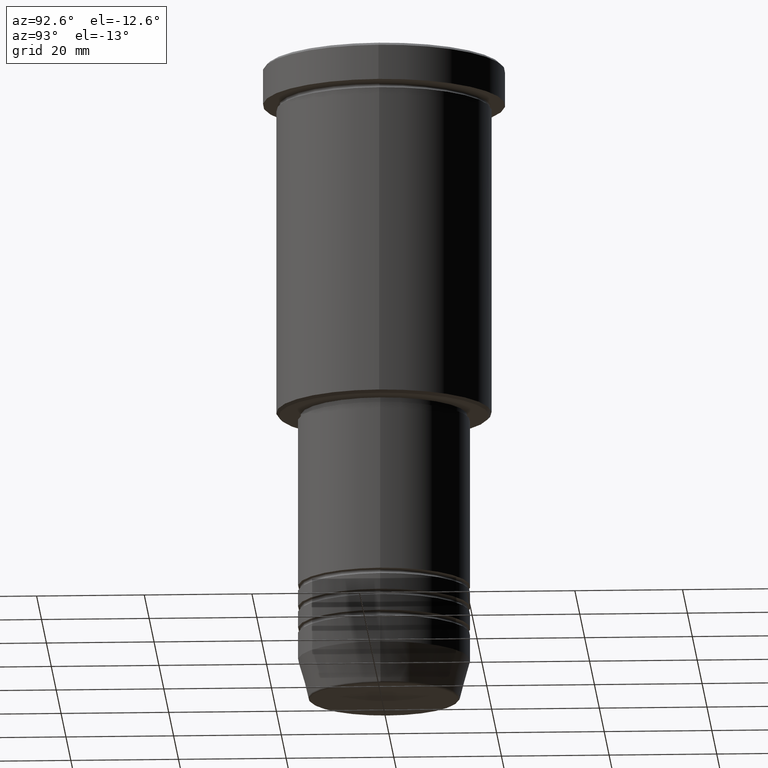
[diagram: clean part render]
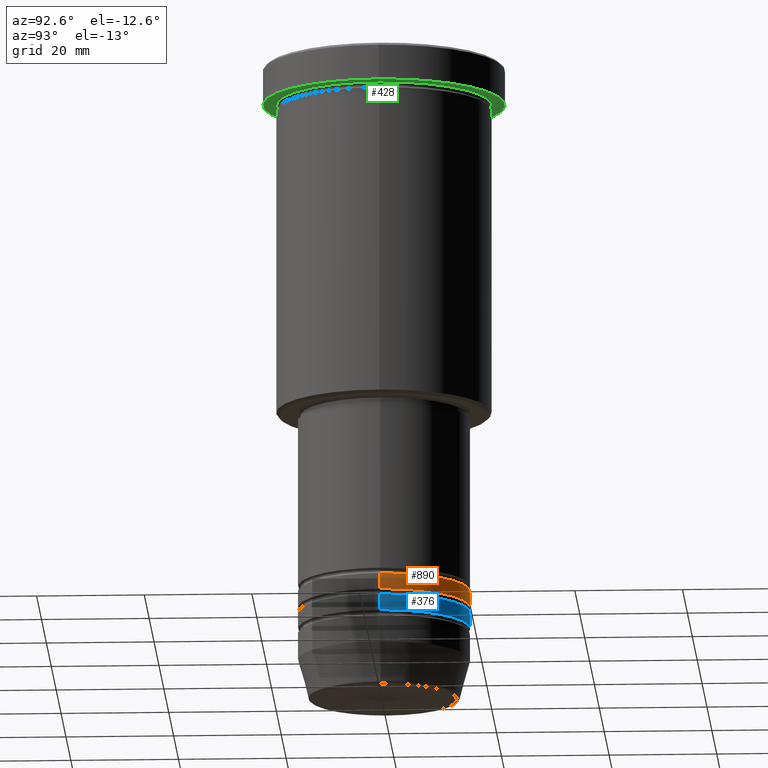
[diagram: same view with three faces highlighted in distinct colors, each labeled with its STEP entity id]
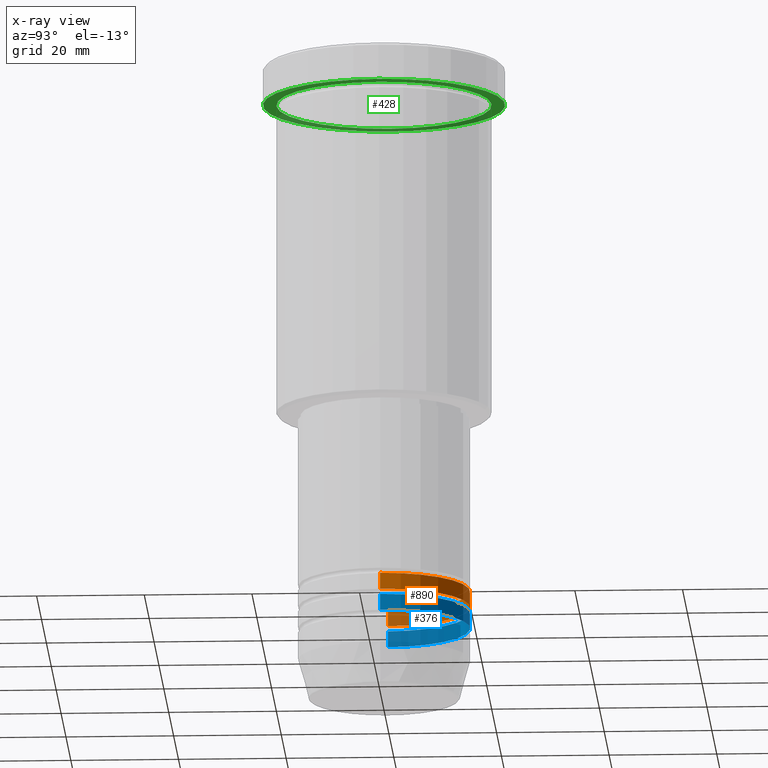
[diagram: x-ray of the same camera — body ghosted, the three highlighted faces saturated]
A machine part, auxiliary view with three faces highlighted in distinct colors.
The next image is the same camera in x-ray (body ghosted, the three faces saturated) — at least one of them is partly hidden behind the body in this view.
Their STEP definitions:

[orange] entity #890 — the highlighted cylindrical surface (partial cylindrical patch) has radius 16 mm, axis along (-0, -0, 1).
#31 = ORIENTED_EDGE ( 'NONE', *, *, #227, .F. ) ;
#54 = ORIENTED_EDGE ( 'NONE', *, *, #595, .F. ) ;
#72 = CYLINDRICAL_SURFACE ( 'NONE', #934, 16.00000000000000000 ) ;
#130 = EDGE_CURVE ( 'NONE', #930, #1176, #850, .T. ) ;
#140 = AXIS2_PLACEMENT_3D ( 'NONE', #306, #852, #497 ) ;
#227 = EDGE_CURVE ( 'NONE', #1007, #970, #561, .T. ) ;
#229 = CARTESIAN_POINT ( 'NONE',  ( -16.00000000000000355, 1.959434878635765526E-15, -102.4999999999999858 ) ) ;
#306 = CARTESIAN_POINT ( 'NONE',  ( 0.000000000000000000, 0.000000000000000000, -102.4999999999999858 ) ) ;
#377 = CARTESIAN_POINT ( 'NONE',  ( 16.00000000000000000, 0.000000000000000000, -99.49999999999997158 ) ) ;
#433 = DIRECTION ( 'NONE',  ( 1.000000000000000000, 0.000000000000000000, 0.000000000000000000 ) ) ;
#438 = CARTESIAN_POINT ( 'NONE',  ( 0.000000000000000000, 0.000000000000000000, 0.000000000000000000 ) ) ;
#497 = DIRECTION ( 'NONE',  ( 1.000000000000000000, 0.000000000000000000, 0.000000000000000000 ) ) ;
#512 = CARTESIAN_POINT ( 'NONE',  ( 16.00000000000000000, 0.000000000000000000, 0.000000000000000000 ) ) ;
#517 = CARTESIAN_POINT ( 'NONE',  ( 16.00000000000000355, 0.000000000000000000, -102.4999999999999858 ) ) ;
#518 = DIRECTION ( 'NONE',  ( -0.000000000000000000, -0.000000000000000000, 1.000000000000000000 ) ) ;
#534 = LINE ( 'NONE', #706, #720 ) ;
#561 = CIRCLE ( 'NONE', #715, 16.00000000000000000 ) ;
#595 = EDGE_CURVE ( 'NONE', #930, #1007, #728, .T. ) ;
#601 = FACE_OUTER_BOUND ( 'NONE', #628, .T. ) ;
#614 = DIRECTION ( 'NONE',  ( -0.000000000000000000, -0.000000000000000000, 1.000000000000000000 ) ) ;
#628 = EDGE_LOOP ( 'NONE', ( #798, #996, #31, #54 ) ) ;
#706 = CARTESIAN_POINT ( 'NONE',  ( -16.00000000000000000, 1.959434878635765131E-15, 0.000000000000000000 ) ) ;
#715 = AXIS2_PLACEMENT_3D ( 'NONE', #863, #856, #756 ) ;
#720 = VECTOR ( 'NONE', #614, 1000.000000000000000 ) ;
#728 = LINE ( 'NONE', #512, #762 ) ;
#756 = DIRECTION ( 'NONE',  ( 1.000000000000000000, 0.000000000000000000, 0.000000000000000000 ) ) ;
#762 = VECTOR ( 'NONE', #518, 1000.000000000000000 ) ;
#798 = ORIENTED_EDGE ( 'NONE', *, *, #130, .T. ) ;
#820 = EDGE_CURVE ( 'NONE', #1176, #970, #534, .T. ) ;
#850 = CIRCLE ( 'NONE', #140, 16.00000000000000355 ) ;
#852 = DIRECTION ( 'NONE',  ( -0.000000000000000000, -0.000000000000000000, 1.000000000000000000 ) ) ;
#856 = DIRECTION ( 'NONE',  ( -0.000000000000000000, -0.000000000000000000, 1.000000000000000000 ) ) ;
#863 = CARTESIAN_POINT ( 'NONE',  ( 0.000000000000000000, 0.000000000000000000, -99.49999999999997158 ) ) ;
#890 = ADVANCED_FACE ( 'NONE', ( #601 ), #72, .T. ) ;
#927 = CARTESIAN_POINT ( 'NONE',  ( -16.00000000000000000, 1.959434878635765131E-15, -99.49999999999997158 ) ) ;
#930 = VERTEX_POINT ( 'NONE', #517 ) ;
#934 = AXIS2_PLACEMENT_3D ( 'NONE', #438, #960, #433 ) ;
#960 = DIRECTION ( 'NONE',  ( -0.000000000000000000, -0.000000000000000000, 1.000000000000000000 ) ) ;
#970 = VERTEX_POINT ( 'NONE', #927 ) ;
#996 = ORIENTED_EDGE ( 'NONE', *, *, #820, .T. ) ;
#1007 = VERTEX_POINT ( 'NONE', #377 ) ;
#1176 = VERTEX_POINT ( 'NONE', #229 ) ;

[blue] entity #376 — the highlighted cylindrical surface (partial cylindrical patch) has radius 16 mm, axis along (-0, -0, 1).
#34 = EDGE_CURVE ( 'NONE', #414, #956, #340, .T. ) ;
#45 = AXIS2_PLACEMENT_3D ( 'NONE', #744, #1050, #1070 ) ;
#66 = AXIS2_PLACEMENT_3D ( 'NONE', #286, #1126, #490 ) ;
#68 = CIRCLE ( 'NONE', #66, 16.00000000000000000 ) ;
#126 = CARTESIAN_POINT ( 'NONE',  ( -16.00000000000000000, 1.959434878635765131E-15, -106.4999999999999716 ) ) ;
#152 = CARTESIAN_POINT ( 'NONE',  ( 16.00000000000000000, 0.000000000000000000, 0.000000000000000000 ) ) ;
#218 = VECTOR ( 'NONE', #503, 1000.000000000000000 ) ;
#257 = CARTESIAN_POINT ( 'NONE',  ( 0.000000000000000000, 0.000000000000000000, 0.000000000000000000 ) ) ;
#286 = CARTESIAN_POINT ( 'NONE',  ( 0.000000000000000000, 0.000000000000000000, -106.4999999999999716 ) ) ;
#340 = LINE ( 'NONE', #152, #218 ) ;
#375 = ORIENTED_EDGE ( 'NONE', *, *, #785, .F. ) ;
#376 = ADVANCED_FACE ( 'NONE', ( #1125 ), #954, .T. ) ;
#412 = DIRECTION ( 'NONE',  ( -0.000000000000000000, -0.000000000000000000, 1.000000000000000000 ) ) ;
#414 = VERTEX_POINT ( 'NONE', #1166 ) ;
#490 = DIRECTION ( 'NONE',  ( 1.000000000000000000, 0.000000000000000000, 0.000000000000000000 ) ) ;
#503 = DIRECTION ( 'NONE',  ( -0.000000000000000000, -0.000000000000000000, 1.000000000000000000 ) ) ;
#542 = ORIENTED_EDGE ( 'NONE', *, *, #34, .F. ) ;
#543 = DIRECTION ( 'NONE',  ( 1.000000000000000000, 0.000000000000000000, 0.000000000000000000 ) ) ;
#544 = CARTESIAN_POINT ( 'NONE',  ( 16.00000000000000000, 0.000000000000000000, -103.4999999999999858 ) ) ;
#591 = LINE ( 'NONE', #1017, #624 ) ;
#600 = CIRCLE ( 'NONE', #45, 16.00000000000000000 ) ;
#605 = CARTESIAN_POINT ( 'NONE',  ( -16.00000000000000000, 1.959434878635765131E-15, -103.4999999999999858 ) ) ;
#624 = VECTOR ( 'NONE', #412, 1000.000000000000000 ) ;
#634 = DIRECTION ( 'NONE',  ( -0.000000000000000000, -0.000000000000000000, 1.000000000000000000 ) ) ;
#651 = VERTEX_POINT ( 'NONE', #126 ) ;
#676 = ORIENTED_EDGE ( 'NONE', *, *, #1097, .T. ) ;
#744 = CARTESIAN_POINT ( 'NONE',  ( 0.000000000000000000, 0.000000000000000000, -103.4999999999999858 ) ) ;
#766 = EDGE_CURVE ( 'NONE', #414, #651, #68, .T. ) ;
#781 = EDGE_LOOP ( 'NONE', ( #1066, #676, #375, #542 ) ) ;
#785 = EDGE_CURVE ( 'NONE', #956, #1095, #600, .T. ) ;
#895 = AXIS2_PLACEMENT_3D ( 'NONE', #257, #634, #543 ) ;
#954 = CYLINDRICAL_SURFACE ( 'NONE', #895, 16.00000000000000000 ) ;
#956 = VERTEX_POINT ( 'NONE', #544 ) ;
#1017 = CARTESIAN_POINT ( 'NONE',  ( -16.00000000000000000, 1.959434878635765131E-15, 0.000000000000000000 ) ) ;
#1050 = DIRECTION ( 'NONE',  ( -0.000000000000000000, -0.000000000000000000, 1.000000000000000000 ) ) ;
#1066 = ORIENTED_EDGE ( 'NONE', *, *, #766, .T. ) ;
#1070 = DIRECTION ( 'NONE',  ( 1.000000000000000000, 0.000000000000000000, 0.000000000000000000 ) ) ;
#1095 = VERTEX_POINT ( 'NONE', #605 ) ;
#1097 = EDGE_CURVE ( 'NONE', #651, #1095, #591, .T. ) ;
#1125 = FACE_OUTER_BOUND ( 'NONE', #781, .T. ) ;
#1126 = DIRECTION ( 'NONE',  ( -0.000000000000000000, -0.000000000000000000, 1.000000000000000000 ) ) ;
#1166 = CARTESIAN_POINT ( 'NONE',  ( 16.00000000000000000, 0.000000000000000000, -106.4999999999999716 ) ) ;

[green] entity #428 — the highlighted planar face has unit normal (0, 0, -1).
#1 = ORIENTED_EDGE ( 'NONE', *, *, #1072, .T. ) ;
#15 = AXIS2_PLACEMENT_3D ( 'NONE', #988, #980, #973 ) ;
#29 = CIRCLE ( 'NONE', #1132, 22.50000000000000000 ) ;
#52 = EDGE_CURVE ( 'NONE', #859, #612, #659, .T. ) ;
#56 = ORIENTED_EDGE ( 'NONE', *, *, #899, .T. ) ;
#91 = FACE_OUTER_BOUND ( 'NONE', #761, .T. ) ;
#167 = CARTESIAN_POINT ( 'NONE',  ( 0.000000000000000000, 22.50000000000000000, -6.999999999999995559 ) ) ;
#177 = FACE_BOUND ( 'NONE', #256, .T. ) ;
#199 = CARTESIAN_POINT ( 'NONE',  ( 22.50000000000000000, 0.000000000000000000, -6.999999999999995559 ) ) ;
#235 = AXIS2_PLACEMENT_3D ( 'NONE', #678, #308, #871 ) ;
#256 = EDGE_LOOP ( 'NONE', ( #56, #1 ) ) ;
#276 = DIRECTION ( 'NONE',  ( 0.000000000000000000, 0.000000000000000000, -1.000000000000000000 ) ) ;
#308 = DIRECTION ( 'NONE',  ( -0.000000000000000000, -0.000000000000000000, 1.000000000000000000 ) ) ;
#334 = DIRECTION ( 'NONE',  ( -0.000000000000000000, -0.000000000000000000, 1.000000000000000000 ) ) ;
#342 = CARTESIAN_POINT ( 'NONE',  ( 20.00000000000000000, 2.449293598294706513E-15, -6.999999999999995559 ) ) ;
#345 = CARTESIAN_POINT ( 'NONE',  ( -22.50000000000000000, 2.755455298081544778E-15, -6.999999999999995559 ) ) ;
#427 = DIRECTION ( 'NONE',  ( 1.000000000000000000, 0.000000000000000000, 0.000000000000000000 ) ) ;
#428 = ADVANCED_FACE ( 'NONE', ( #177, #91 ), #1180, .T. ) ;
#504 = CIRCLE ( 'NONE', #15, 20.00000000000000000 ) ;
#511 = CARTESIAN_POINT ( 'NONE',  ( -20.00000000000000000, 0.000000000000000000, -6.999999999999995559 ) ) ;
#524 = AXIS2_PLACEMENT_3D ( 'NONE', #1049, #334, #1078 ) ;
#532 = DIRECTION ( 'NONE',  ( -1.000000000000000000, 0.000000000000000000, -0.000000000000000000 ) ) ;
#558 = VERTEX_POINT ( 'NONE', #342 ) ;
#598 = AXIS2_PLACEMENT_3D ( 'NONE', #167, #276, #532 ) ;
#612 = VERTEX_POINT ( 'NONE', #199 ) ;
#659 = CIRCLE ( 'NONE', #524, 22.50000000000000000 ) ;
#678 = CARTESIAN_POINT ( 'NONE',  ( 0.000000000000000000, 0.000000000000000000, -6.999999999999995559 ) ) ;
#725 = ORIENTED_EDGE ( 'NONE', *, *, #778, .F. ) ;
#748 = CARTESIAN_POINT ( 'NONE',  ( 0.000000000000000000, 0.000000000000000000, -6.999999999999995559 ) ) ;
#757 = CIRCLE ( 'NONE', #235, 20.00000000000000000 ) ;
#761 = EDGE_LOOP ( 'NONE', ( #725, #1041 ) ) ;
#778 = EDGE_CURVE ( 'NONE', #612, #859, #29, .T. ) ;
#801 = VERTEX_POINT ( 'NONE', #511 ) ;
#859 = VERTEX_POINT ( 'NONE', #345 ) ;
#871 = DIRECTION ( 'NONE',  ( -1.000000000000000000, 0.000000000000000000, 0.000000000000000000 ) ) ;
#899 = EDGE_CURVE ( 'NONE', #801, #558, #504, .T. ) ;
#973 = DIRECTION ( 'NONE',  ( -1.000000000000000000, 0.000000000000000000, 0.000000000000000000 ) ) ;
#980 = DIRECTION ( 'NONE',  ( -0.000000000000000000, -0.000000000000000000, 1.000000000000000000 ) ) ;
#988 = CARTESIAN_POINT ( 'NONE',  ( 0.000000000000000000, 0.000000000000000000, -6.999999999999995559 ) ) ;
#1030 = DIRECTION ( 'NONE',  ( -0.000000000000000000, -0.000000000000000000, 1.000000000000000000 ) ) ;
#1041 = ORIENTED_EDGE ( 'NONE', *, *, #52, .F. ) ;
#1049 = CARTESIAN_POINT ( 'NONE',  ( 0.000000000000000000, 0.000000000000000000, -6.999999999999995559 ) ) ;
#1072 = EDGE_CURVE ( 'NONE', #558, #801, #757, .T. ) ;
#1078 = DIRECTION ( 'NONE',  ( 1.000000000000000000, 0.000000000000000000, 0.000000000000000000 ) ) ;
#1132 = AXIS2_PLACEMENT_3D ( 'NONE', #748, #1030, #427 ) ;
#1180 = PLANE ( 'NONE',  #598 ) ;